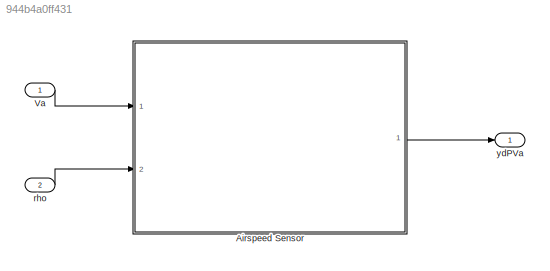
MODEL slx_944b4a0ff431
KIND model
CONFIG AbsTol = auto
CONFIG EnableMultiTasking = off
CONFIG FixedStep = 0.001
CONFIG MaxStep = auto
CONFIG MinStep = auto
CONFIG RelTol = 1e-3
CONFIG SampleTimeConstraint = Unconstrained
CONFIG Solver = FixedStepAuto
CONFIG SolverName = FixedStepAuto
CONFIG StartTime = 0.0
CONFIG StopTime = 10.0
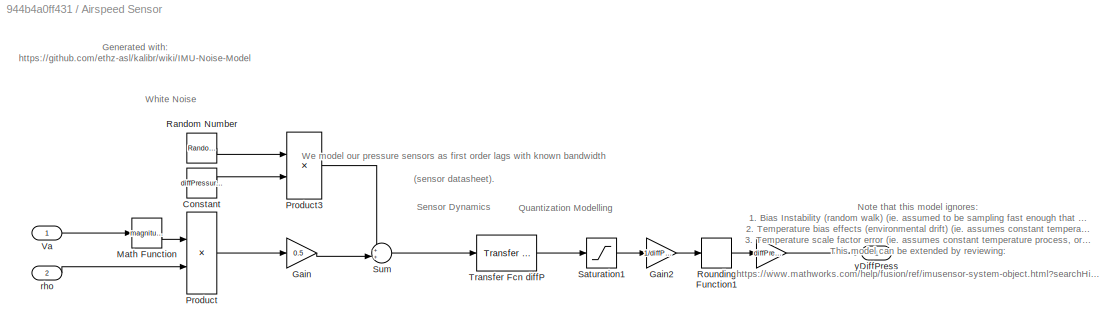
BLOCK [SubSystem] Airspeed Sensor
  Ports = [2, 1]
  RequestExecContextInheritance = off
BLOCK [Constant] Airspeed Sensor/Constant
  Value = diffPressureNoiseDensity*(1/sqrt(SampleTime))
BLOCK [Gain] Airspeed Sensor/Gain
  Gain = 0.5
  OutDataTypeStr = Inherit: Inherit via internal rule
  ParamDataTypeStr = Inherit: Inherit via internal rule
  SaturateOnIntegerOverflow = off
BLOCK [Gain] Airspeed Sensor/Gain2
  Gain = 1/diffPressureResolution
  OutDataTypeStr = Inherit: Inherit via internal rule
  ParamDataTypeStr = Inherit: Inherit via internal rule
  SaturateOnIntegerOverflow = off
BLOCK [Gain] Airspeed Sensor/Gain3
  Gain = diffPressureResolution
  OutDataTypeStr = Inherit: Inherit via internal rule
  ParamDataTypeStr = Inherit: Inherit via internal rule
  SaturateOnIntegerOverflow = off
BLOCK [Math] Airspeed Sensor/Math Function
  Operator = magnitude^2
  Ports = [1, 1]
BLOCK [Product] Airspeed Sensor/Product
  InputSameDT = off
  OutDataTypeStr = Inherit: Inherit via internal rule
  Ports = [2, 1]
  RndMeth = Floor
  SaturateOnIntegerOverflow = off
BLOCK [Product] Airspeed Sensor/Product3
  InputSameDT = off
  OutDataTypeStr = Inherit: Inherit via internal rule
  Ports = [2, 1]
  RndMeth = Floor
  SaturateOnIntegerOverflow = off
BLOCK [RandomNumber] Airspeed Sensor/Random Number
  SampleTime = SampleTime
BLOCK [Rounding] Airspeed Sensor/Rounding Function1
BLOCK [Saturate] Airspeed Sensor/Saturation1
  InputPortMap = u0
  LowerLimit = diffPressureLowerSaturation
  Ports = [1, 1]
  UpperLimit = diffPressureUpperSaturation
BLOCK [Sum] Airspeed Sensor/Sum
  IconShape = round
  InputSameDT = off
  Inputs = ++|
  OutDataTypeStr = Inherit: Inherit via internal rule
  Ports = [2, 1]
  SaturateOnIntegerOverflow = off
BLOCK [Reference] Airspeed Sensor/Transfer Fcn diffP  REF=simulink_extras/Additional
Linear/Transfer Fcn
(with initial outputs)
  Ports = [1, 1]
  SourceBlock = simulink_extras/Additional\nLinear/Transfer Fcn\n(with initial outputs)
  SourceProductBaseCode = SL
  SourceProductName = Simulink
  SourceType = Transfer Function with Initial Outputs
BLOCK [Inport] Airspeed Sensor/Va
  IconDisplay = Port number
BLOCK [Inport] Airspeed Sensor/rho
  IconDisplay = Port number
  Port = 2
BLOCK [Outport] Airspeed Sensor/yDiffPress
  IconDisplay = Port number
BLOCK [Inport] Va
  IconDisplay = Port number
BLOCK [Inport] rho
  IconDisplay = Port number
  Port = 2
BLOCK [Outport] ydPVa
  IconDisplay = Port number
ANNOTATION Airspeed Sensor: Note that this model ignores: 1. Bias Instability (random walk) (ie. assumed to be sampling fast enough that this isn't the dominant noise) 2. Temperature bias effects (environmental drift) (ie. assumes constant temperature process, or adjusted for independently) 3. Temperature scale factor error (ie. assumes constant temperature process, or adjusted for independently) This model can be extended b...<+129ch>
ANNOTATION Airspeed Sensor: Generated with: https://github.com/ethz-asl/kalibr/wiki/IMU-Noise-Model
ANNOTATION Airspeed Sensor: Quantization Modelling
ANNOTATION Airspeed Sensor: Sensor Dynamics
ANNOTATION Airspeed Sensor: We model our pressure sensors as first order lags with known bandwidth (sensor datasheet).
ANNOTATION Airspeed Sensor: White Noise
LINE Airspeed Sensor/Constant:1 -> Airspeed Sensor/Product3:2
LINE Airspeed Sensor/Gain2:1 -> Airspeed Sensor/Rounding Function1:1
LINE Airspeed Sensor/Gain3:1 -> Airspeed Sensor/yDiffPress:1
LINE Airspeed Sensor/Gain:1 -> Airspeed Sensor/Sum:2
LINE Airspeed Sensor/Math Function:1 -> Airspeed Sensor/Product:1
LINE Airspeed Sensor/Product3:1 -> Airspeed Sensor/Sum:1
LINE Airspeed Sensor/Product:1 -> Airspeed Sensor/Gain:1
LINE Airspeed Sensor/Random Number:1 -> Airspeed Sensor/Product3:1
LINE Airspeed Sensor/Rounding Function1:1 -> Airspeed Sensor/Gain3:1
LINE Airspeed Sensor/Saturation1:1 -> Airspeed Sensor/Gain2:1
LINE Airspeed Sensor/Sum:1 -> Airspeed Sensor/Transfer Fcn diffP:1
LINE Airspeed Sensor/Transfer Fcn diffP:1 -> Airspeed Sensor/Saturation1:1
LINE Airspeed Sensor/Va:1 -> Airspeed Sensor/Math Function:1
LINE Airspeed Sensor/rho:1 -> Airspeed Sensor/Product:2
LINE Airspeed Sensor:1 -> ydPVa:1
LINE Va:1 -> Airspeed Sensor:1
LINE rho:1 -> Airspeed Sensor:2
